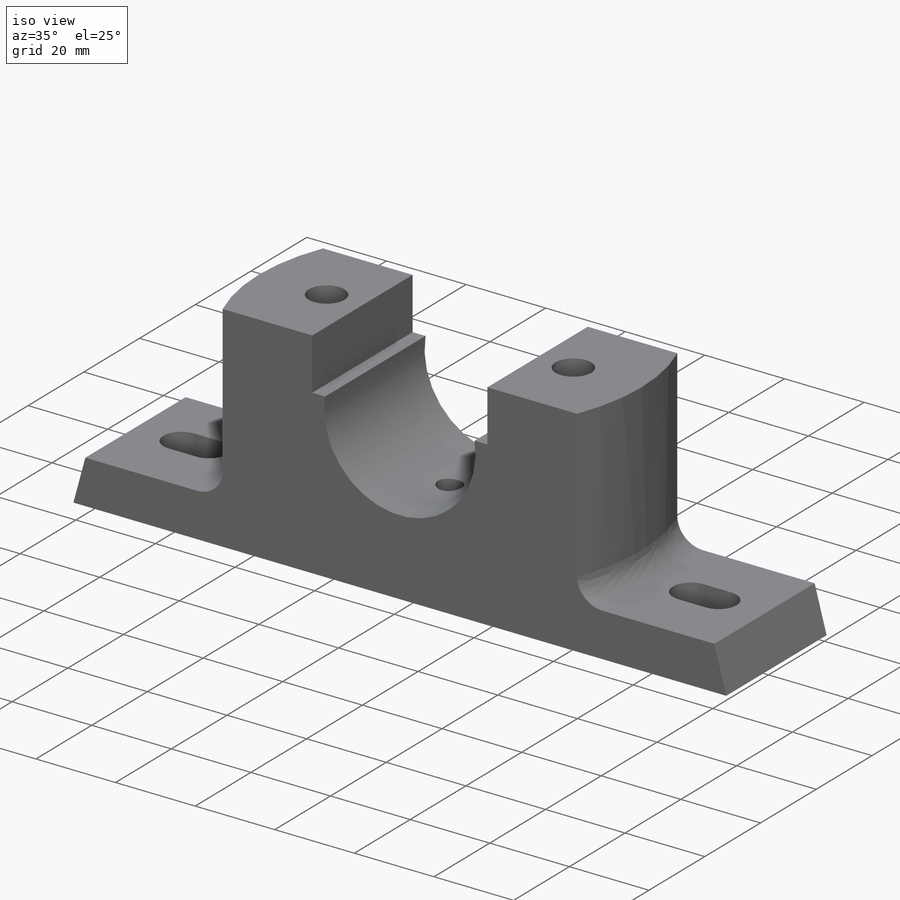
[diagram: iso view]
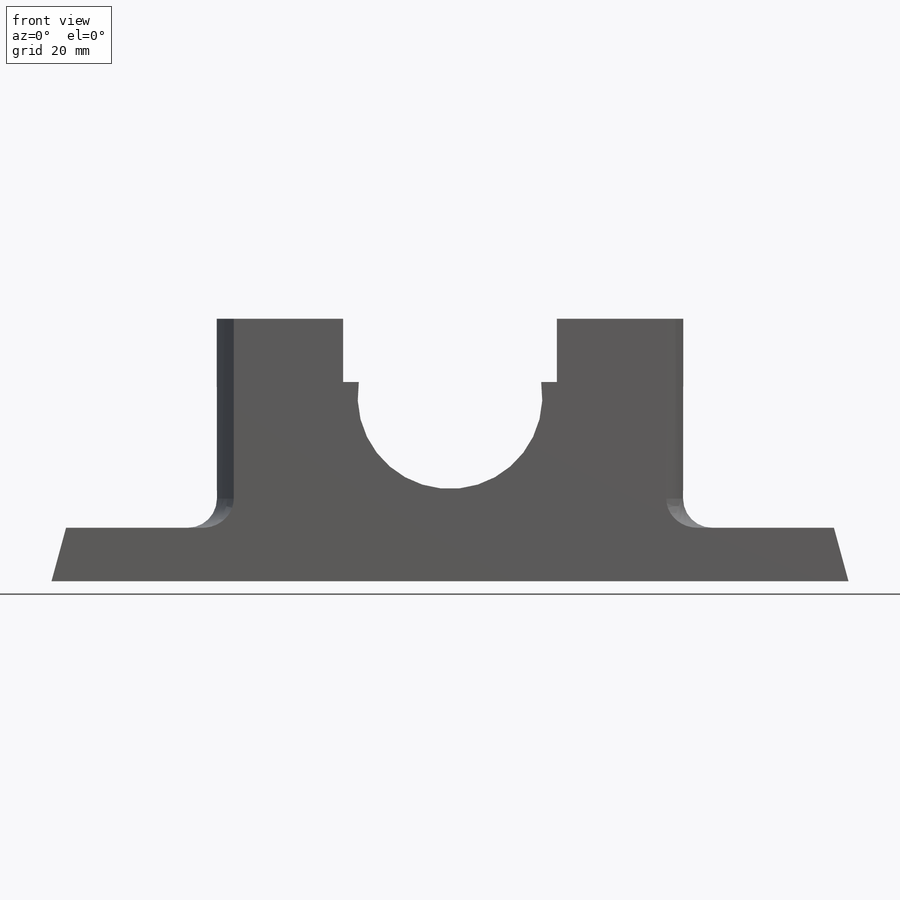
[diagram: front view]
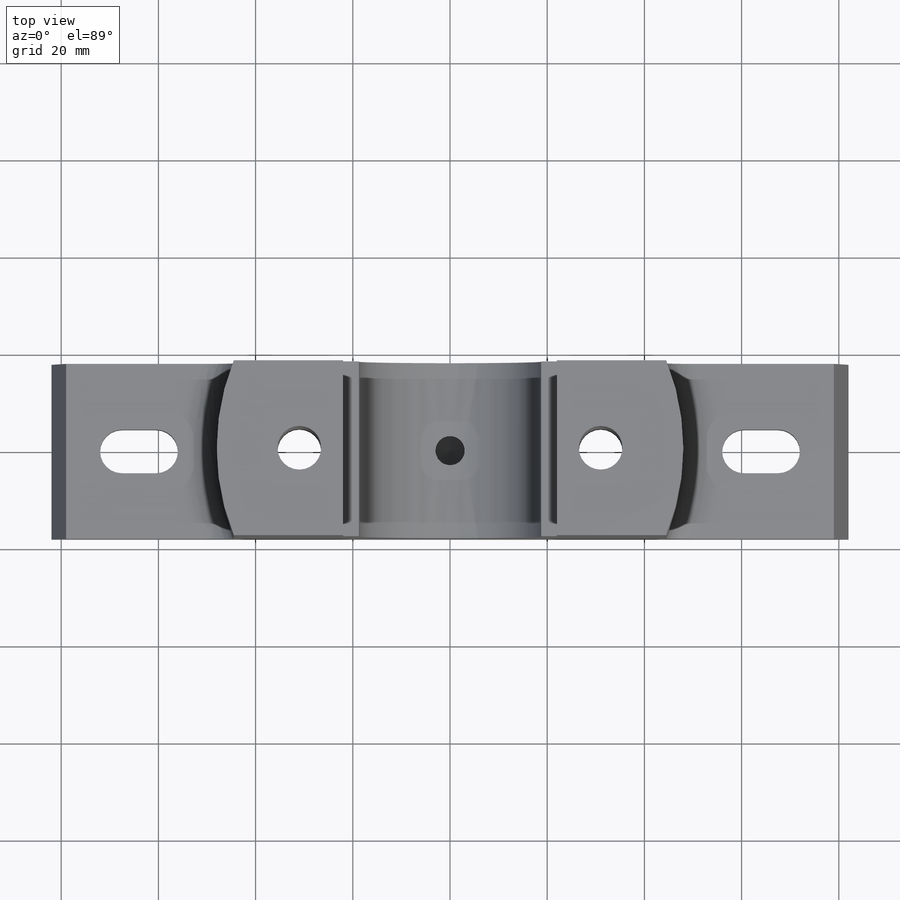
[diagram: top view]
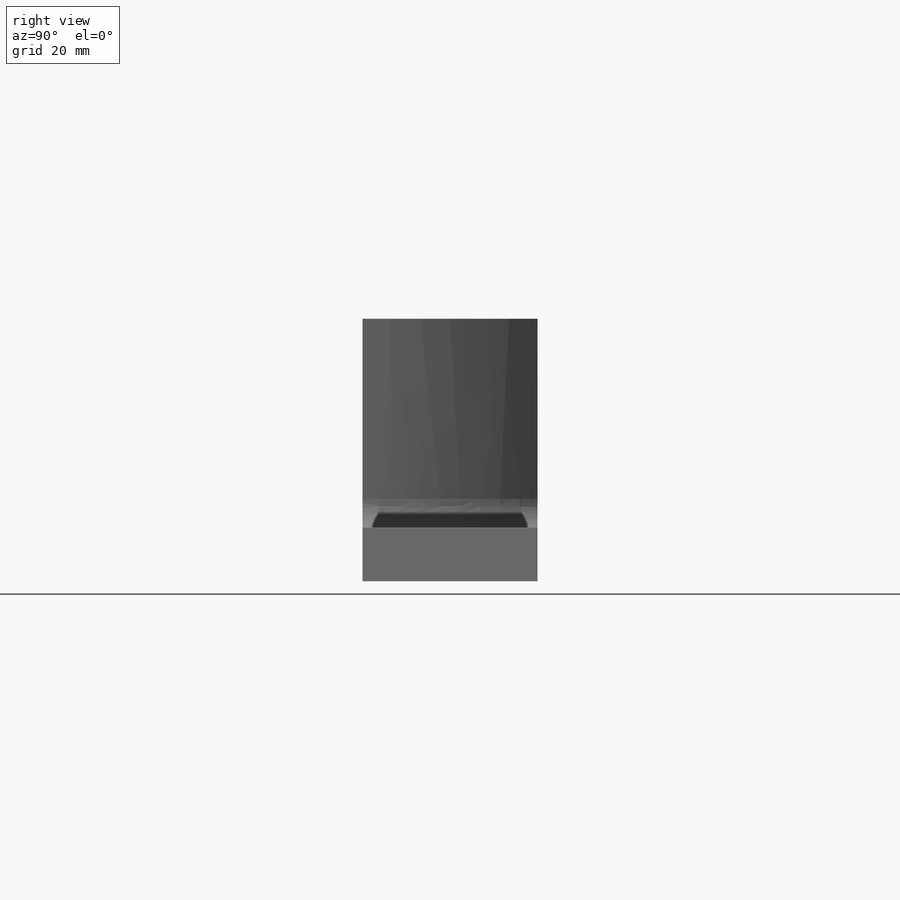
[diagram: right view]
SOLIDWORKS PART (.sldprt)
format: sldprt  version: not decoded by parser v0  size: 323,584 bytes
history: native  units: mm
features: sketch x9, mirror x5, cut_extrude x4, hole x2, material x1, extrude x1, fillet x1 (+12 scaffold rows collapsed)
feature tree (35):
  scaffold x12  (default folders/planes/origin — collapsed)
  material  "Material <not specified>"
  sketch  "Sketch1"  dims[D7=19.0mm D1=164.0mm D2=3.0mm D3=54.0mm D4=11.0mm D5=13.0mm D6=16.0mm D8=44.0mm D9=100.0mm D10=100.0mm]
  extrude  "Boss-Extrude1"  Depth=36mm
  sketch  "Sketch2"  dims[D1=48.0mm]
  cut_extrude  "Cut-Extrude1"  Depth=43mm
  mirror  "Mirror1"
  sketch  "Sketch3"  dims[D1=48.0mm D2=48.0mm]
  cut_extrude  "Cut-Extrude2"  [1 undecoded]
  mirror  "Mirror2"
  sketch  "Sketch4"  dims[D1=31.0mm D2=20.0mm D3=20.0mm]
  cut_extrude  "Cut-Extrude3"  Depth=8mm
  mirror  "Mirror3"
  fillet  "Fillet1"  Radius=6mm
  hole  "Ø6.0mm Dowel Hole2"  Diameter=9mm Depth=54mm
  sketch  "Sketch11"  dims[D1=31.0mm]
  sketch  "Sketch10"  dims[hole-wizard template sketch: 46 standard entries collapsed; hole parameters kept: c15.Hole Dia.=9.0mm c15.Hole Depth=54.0mm c15.D3=~14.816244mm c15.Drill Angle=118.0deg]
  mirror  "Mirror4"
  sketch  "Sketch18"  dims[D1=16.0mm D2=64.0mm]
  cut_extrude  "Cut-Extrude4"  [1 undecoded]
  mirror  "Mirror5"
  hole  "Ø6.0mm Dowel Hole3"  Diameter=6mm Depth=6mm
  sketch  "3DSketch1"  dims[D1=0.0mm]
  sketch  "Sketch21"  dims[hole-wizard template sketch: 47 standard entries collapsed; hole parameters kept: c15.Hole Depth=6.0mm c15.D3=~14.816244mm c15.Drill Angle=118.0deg]
decode coverage: 15 of 22 modeling features carry decoded parameters
note: ~ marks probable driven/reference dimensions
note: 2 parameter values undecoded
note: suppression state not decoded; provenance and decode notes live in map.json
